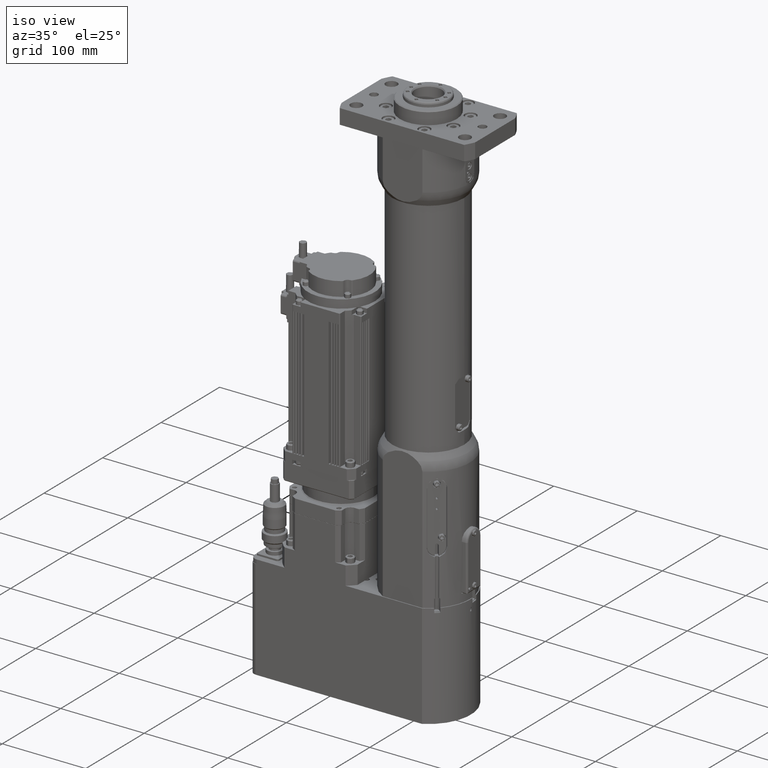
[diagram: clean part render]
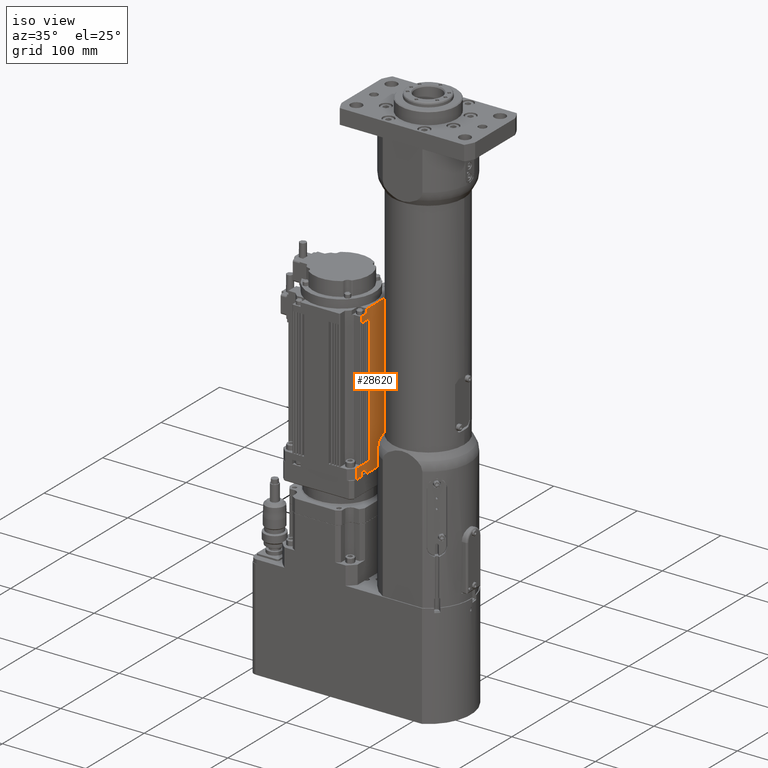
[diagram: same view with one face highlighted and labeled with its STEP entity id]
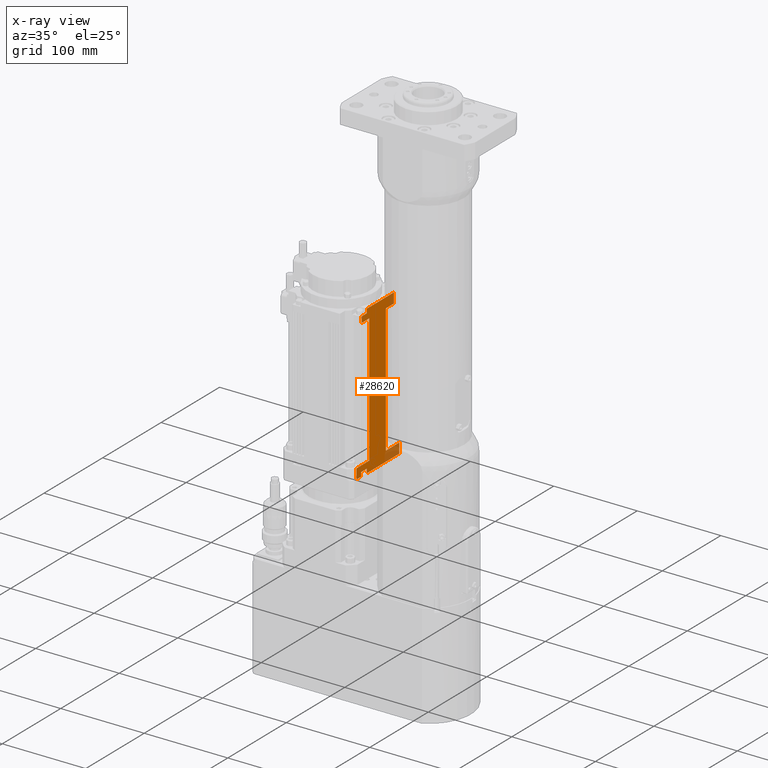
[diagram: x-ray of the same camera — body ghosted, the highlighted face saturated]
A machine part, iso view. The second image highlights one B-rep face of the part: STEP entity #28620.
The next image is the same camera in x-ray: the body ghosted, the highlighted face saturated — about 7% of this face is hidden behind the body in this view.
In plain terms, the highlighted planar face has unit normal (1, 0, -0).
Its self-contained STEP definition (entity closure, byte-faithful):
#3024=PLANE('',#31618);
#4294=LINE('',#46968,#6147);
#4299=LINE('',#46995,#6152);
#4330=LINE('',#47072,#6183);
#4332=LINE('',#47078,#6185);
#4335=LINE('',#47083,#6188);
#4425=LINE('',#47303,#6278);
#4435=LINE('',#47328,#6288);
#4441=LINE('',#47344,#6294);
#4453=LINE('',#47373,#6306);
#4462=LINE('',#47395,#6315);
#4468=LINE('',#47411,#6321);
#4475=LINE('',#47428,#6328);
#4482=LINE('',#47446,#6335);
#4560=LINE('',#47670,#6413);
#4562=LINE('',#47677,#6415);
#4564=LINE('',#47684,#6417);
#4567=LINE('',#47693,#6420);
#4570=LINE('',#47703,#6423);
#4573=LINE('',#47712,#6426);
#4575=LINE('',#47719,#6428);
#4577=LINE('',#47726,#6430);
#4602=LINE('',#47810,#6455);
#4609=LINE('',#47826,#6462);
#4858=LINE('',#48682,#6711);
#4859=LINE('',#48684,#6712);
#4867=LINE('',#48703,#6720);
#4869=LINE('',#48707,#6722);
#4877=LINE('',#48726,#6730);
#4878=LINE('',#48729,#6731);
#4879=LINE('',#48730,#6732);
#4880=LINE('',#48731,#6733);
#4881=LINE('',#48732,#6734);
#6147=VECTOR('',#37249,12.);
#6152=VECTOR('',#37276,12.);
#6183=VECTOR('',#37347,9.99999999999999);
#6185=VECTOR('',#37353,5.);
#6188=VECTOR('',#37358,5.);
#6278=VECTOR('',#37530,3.99999999999997);
#6288=VECTOR('',#37550,3.00000000000001);
#6294=VECTOR('',#37564,2.99999999999999);
#6306=VECTOR('',#37588,3.00000000000001);
#6315=VECTOR('',#37607,2.99999999999999);
#6321=VECTOR('',#37621,3.49999999999999);
#6328=VECTOR('',#37636,3.50000000000001);
#6335=VECTOR('',#37651,3.99999999999997);
#6413=VECTOR('',#37845,3.50000000000001);
#6415=VECTOR('',#37853,2.99999999999999);
#6417=VECTOR('',#37861,2.99999999999999);
#6420=VECTOR('',#37870,3.99999999999999);
#6423=VECTOR('',#37879,3.99999999999999);
#6426=VECTOR('',#37888,3.49999999999999);
#6428=VECTOR('',#37896,3.00000000000001);
#6430=VECTOR('',#37904,3.00000000000001);
#6455=VECTOR('',#37989,8.99999999999998);
#6462=VECTOR('',#38002,5.);
#6711=VECTOR('',#38907,12.0000000000001);
#6712=VECTOR('',#38910,46.);
#6720=VECTOR('',#38940,154.);
#6722=VECTOR('',#38946,154.);
#6730=VECTOR('',#38976,7.00000000000019);
#6731=VECTOR('',#38981,9.33408747342606);
#6732=VECTOR('',#38982,8.33408747342602);
#6733=VECTOR('',#38983,55.334087473426);
#6734=VECTOR('',#38984,9.33408747342607);
#9414=FACE_OUTER_BOUND('',#11484,.T.);
#11484=EDGE_LOOP('',(#25549,#25550,#25551,#25552,#25553,#25554,#25555,#25556,
#25557,#25558,#25559,#25560,#25561,#25562,#25563,#25564,#25565,#25566,#25567,
#25568,#25569,#25570,#25571,#25572,#25573,#25574,#25575,#25576,#25577,#25578,
#25579,#25580));
#14922=VERTEX_POINT('',#46960);
#14925=VERTEX_POINT('',#46966);
#14935=VERTEX_POINT('',#46992);
#14936=VERTEX_POINT('',#46994);
#14960=VERTEX_POINT('',#47066);
#14962=VERTEX_POINT('',#47070);
#14964=VERTEX_POINT('',#47077);
#14965=VERTEX_POINT('',#47081);
#15053=VERTEX_POINT('',#47301);
#15054=VERTEX_POINT('',#47302);
#15063=VERTEX_POINT('',#47326);
#15064=VERTEX_POINT('',#47327);
#15070=VERTEX_POINT('',#47343);
#15080=VERTEX_POINT('',#47371);
#15081=VERTEX_POINT('',#47372);
#15089=VERTEX_POINT('',#47394);
#15095=VERTEX_POINT('',#47410);
#15108=VERTEX_POINT('',#47445);
#15195=VERTEX_POINT('',#47667);
#15196=VERTEX_POINT('',#47669);
#15198=VERTEX_POINT('',#47676);
#15200=VERTEX_POINT('',#47683);
#15203=VERTEX_POINT('',#47692);
#15206=VERTEX_POINT('',#47700);
#15207=VERTEX_POINT('',#47702);
#15210=VERTEX_POINT('',#47711);
#15212=VERTEX_POINT('',#47718);
#15214=VERTEX_POINT('',#47725);
#15242=VERTEX_POINT('',#47807);
#15243=VERTEX_POINT('',#47809);
#15249=VERTEX_POINT('',#47825);
#15488=VERTEX_POINT('',#48680);
#18172=EDGE_CURVE('',#14922,#14925,#4294,.T.);
#18185=EDGE_CURVE('',#14935,#14936,#4299,.T.);
#18224=EDGE_CURVE('',#14960,#14962,#4330,.T.);
#18227=EDGE_CURVE('',#14964,#14960,#4332,.T.);
#18230=EDGE_CURVE('',#14962,#14965,#4335,.T.);
#18334=EDGE_CURVE('',#15053,#15054,#4425,.T.);
#18346=EDGE_CURVE('',#15063,#15064,#4435,.T.);
#18354=EDGE_CURVE('',#15070,#15063,#4441,.T.);
#18368=EDGE_CURVE('',#15080,#15081,#4453,.T.);
#18379=EDGE_CURVE('',#15081,#15089,#4462,.T.);
#18387=EDGE_CURVE('',#15080,#15095,#4468,.T.);
#18396=EDGE_CURVE('',#15064,#15053,#4475,.T.);
#18405=EDGE_CURVE('',#15108,#15089,#4482,.T.);
#18517=EDGE_CURVE('',#15195,#15196,#4560,.T.);
#18521=EDGE_CURVE('',#15196,#15198,#4562,.T.);
#18525=EDGE_CURVE('',#15198,#15200,#4564,.T.);
#18530=EDGE_CURVE('',#15200,#15203,#4567,.T.);
#18535=EDGE_CURVE('',#15206,#15207,#4570,.T.);
#18540=EDGE_CURVE('',#15207,#15210,#4573,.T.);
#18544=EDGE_CURVE('',#15210,#15212,#4575,.T.);
#18548=EDGE_CURVE('',#15212,#15214,#4577,.T.);
#18593=EDGE_CURVE('',#15243,#15242,#4602,.T.);
#18601=EDGE_CURVE('',#15249,#15243,#4609,.T.);
#19003=EDGE_CURVE('',#15488,#15195,#4858,.T.);
#19004=EDGE_CURVE('',#15249,#15488,#4859,.T.);
#19012=EDGE_CURVE('',#15203,#15108,#4867,.T.);
#19014=EDGE_CURVE('',#15054,#15206,#4869,.T.);
#19022=EDGE_CURVE('',#15214,#15242,#4877,.T.);
#19024=EDGE_CURVE('',#14936,#15070,#4878,.T.);
#19025=EDGE_CURVE('',#14935,#14964,#4879,.T.);
#19026=EDGE_CURVE('',#14965,#14922,#4880,.T.);
#19027=EDGE_CURVE('',#15095,#14925,#4881,.T.);
#25549=ORIENTED_EDGE('',*,*,#19022,.F.);
#25550=ORIENTED_EDGE('',*,*,#18548,.F.);
#25551=ORIENTED_EDGE('',*,*,#18544,.F.);
#25552=ORIENTED_EDGE('',*,*,#18540,.F.);
#25553=ORIENTED_EDGE('',*,*,#18535,.F.);
#25554=ORIENTED_EDGE('',*,*,#19014,.F.);
#25555=ORIENTED_EDGE('',*,*,#18334,.F.);
#25556=ORIENTED_EDGE('',*,*,#18396,.F.);
#25557=ORIENTED_EDGE('',*,*,#18346,.F.);
#25558=ORIENTED_EDGE('',*,*,#18354,.F.);
#25559=ORIENTED_EDGE('',*,*,#19024,.F.);
#25560=ORIENTED_EDGE('',*,*,#18185,.F.);
#25561=ORIENTED_EDGE('',*,*,#19025,.T.);
#25562=ORIENTED_EDGE('',*,*,#18227,.T.);
#25563=ORIENTED_EDGE('',*,*,#18224,.T.);
#25564=ORIENTED_EDGE('',*,*,#18230,.T.);
#25565=ORIENTED_EDGE('',*,*,#19026,.T.);
#25566=ORIENTED_EDGE('',*,*,#18172,.T.);
#25567=ORIENTED_EDGE('',*,*,#19027,.F.);
#25568=ORIENTED_EDGE('',*,*,#18387,.F.);
#25569=ORIENTED_EDGE('',*,*,#18368,.T.);
#25570=ORIENTED_EDGE('',*,*,#18379,.T.);
#25571=ORIENTED_EDGE('',*,*,#18405,.F.);
#25572=ORIENTED_EDGE('',*,*,#19012,.F.);
#25573=ORIENTED_EDGE('',*,*,#18530,.F.);
#25574=ORIENTED_EDGE('',*,*,#18525,.F.);
#25575=ORIENTED_EDGE('',*,*,#18521,.F.);
#25576=ORIENTED_EDGE('',*,*,#18517,.F.);
#25577=ORIENTED_EDGE('',*,*,#19003,.F.);
#25578=ORIENTED_EDGE('',*,*,#19004,.F.);
#25579=ORIENTED_EDGE('',*,*,#18601,.T.);
#25580=ORIENTED_EDGE('',*,*,#18593,.T.);
#28620=ADVANCED_FACE('',(#9414),#3024,.T.);
#31618=AXIS2_PLACEMENT_3D('',#48728,#38979,#38980);
#37249=DIRECTION('',(9.30439962930108E-17,-3.48167009810821E-18,1.));
#37276=DIRECTION('',(9.30439962930108E-17,-3.48167009810821E-18,1.));
#37347=DIRECTION('',(-5.30652202546146E-15,1.,3.4816700981087E-18));
#37353=DIRECTION('',(9.30439962930108E-17,-3.48167009810821E-18,1.));
#37358=DIRECTION('',(-9.30439962930108E-17,3.48167009810821E-18,-1.));
#37530=DIRECTION('',(-5.30652202546146E-15,1.,3.48167009810888E-18));
#37550=DIRECTION('',(-5.30652202546146E-15,1.,3.48167009810888E-18));
#37564=DIRECTION('',(-5.30652202546146E-15,1.,3.48167009810888E-18));
#37588=DIRECTION('',(5.30652202546146E-15,-1.,-3.48167009810888E-18));
#37607=DIRECTION('',(5.30652202546146E-15,-1.,-3.48167009810888E-18));
#37621=DIRECTION('',(-5.30652202546146E-15,1.,3.48167009810888E-18));
#37636=DIRECTION('',(-5.30652202546146E-15,1.,3.48167009810888E-18));
#37651=DIRECTION('',(-5.30652202546146E-15,1.,3.48167009810888E-18));
#37845=DIRECTION('',(5.30652202546146E-15,-1.,-3.4816700981087E-18));
#37853=DIRECTION('',(5.30652202546146E-15,-1.,-3.4816700981087E-18));
#37861=DIRECTION('',(5.30652202546146E-15,-1.,-3.4816700981087E-18));
#37870=DIRECTION('',(5.30652202546146E-15,-1.,-3.4816700981087E-18));
#37879=DIRECTION('',(5.30652202546146E-15,-1.,-3.4816700981087E-18));
#37888=DIRECTION('',(5.30652202546146E-15,-1.,-3.4816700981087E-18));
#37896=DIRECTION('',(5.30652202546146E-15,-1.,-3.4816700981087E-18));
#37904=DIRECTION('',(5.30652202546146E-15,-1.,-3.4816700981087E-18));
#37989=DIRECTION('',(5.30652202546146E-15,-1.,-3.4816700981087E-18));
#38002=DIRECTION('',(-9.30439962930108E-17,3.48167009810821E-18,-1.));
#38907=DIRECTION('',(-9.30439962930108E-17,3.48167009810821E-18,-1.));
#38910=DIRECTION('',(-6.24500451352013E-16,1.,3.48167009810826E-18));
#38940=DIRECTION('',(-9.30439962930121E-17,2.63014325205288E-16,-1.));
#38946=DIRECTION('',(9.30439962930095E-17,2.27214023330496E-16,1.));
#38976=DIRECTION('',(9.30439962930108E-17,-3.48167009810821E-18,1.));
#38979=DIRECTION('center_axis',(1.,5.30652202546146E-15,-9.30439962930108E-17));
#38980=DIRECTION('ref_axis',(-4.9737991503207E-15,1.,0.));
#38981=DIRECTION('',(-5.30652202546146E-15,1.,3.4816700981087E-18));
#38982=DIRECTION('',(-5.30652202546146E-15,1.,3.4816700981087E-18));
#38983=DIRECTION('',(-5.30652202546146E-15,1.,3.4816700981087E-18));
#38984=DIRECTION('',(-5.30652202546146E-15,1.,3.4816700981087E-18));
#46960=CARTESIAN_POINT('',(-60.5000000000002,36.8340874734263,103.5));
#46966=CARTESIAN_POINT('',(-60.5000000000002,36.8340874734263,115.5));
#46968=CARTESIAN_POINT('',(-60.5000000000002,36.8340874734263,103.5));
#46992=CARTESIAN_POINT('',(-60.4999999999998,-36.8340874734258,103.5));
#46994=CARTESIAN_POINT('',(-60.4999999999998,-36.8340874734258,115.5));
#46995=CARTESIAN_POINT('',(-60.4999999999998,-36.8340874734258,103.5));
#47066=CARTESIAN_POINT('',(-60.4999999999998,-28.4999999999998,108.5));
#47070=CARTESIAN_POINT('',(-60.4999999999999,-18.4999999999998,108.5));
#47072=CARTESIAN_POINT('',(-60.4999999999998,-30.1670437367128,108.5));
#47077=CARTESIAN_POINT('',(-60.4999999999998,-28.4999999999998,103.5));
#47078=CARTESIAN_POINT('',(-60.4999999999998,-28.4999999999998,103.5));
#47081=CARTESIAN_POINT('',(-60.4999999999999,-18.4999999999998,103.5));
#47083=CARTESIAN_POINT('',(-60.4999999999999,-18.4999999999998,103.5));
#47301=CARTESIAN_POINT('',(-60.4999999999999,-17.9999999999997,115.5));
#47302=CARTESIAN_POINT('',(-60.4999999999999,-13.9999999999998,115.5));
#47303=CARTESIAN_POINT('',(-60.4999999999998,-25.9170437367128,115.5));
#47326=CARTESIAN_POINT('',(-60.4999999999998,-24.4999999999997,115.5));
#47327=CARTESIAN_POINT('',(-60.4999999999999,-21.4999999999997,115.5));
#47328=CARTESIAN_POINT('',(-60.4999999999998,-29.4170437367128,115.5));
#47343=CARTESIAN_POINT('',(-60.4999999999998,-27.4999999999997,115.5));
#47344=CARTESIAN_POINT('',(-60.4999999999998,-30.9170437367128,115.5));
#47371=CARTESIAN_POINT('',(-60.5000000000001,24.0000000000002,115.5));
#47372=CARTESIAN_POINT('',(-60.5000000000001,21.0000000000002,115.5));
#47373=CARTESIAN_POINT('',(-60.4999999999999,-6.6670437367128,115.5));
#47394=CARTESIAN_POINT('',(-60.5000000000001,18.0000000000002,115.5));
#47395=CARTESIAN_POINT('',(-60.4999999999999,-8.1670437367128,115.5));
#47410=CARTESIAN_POINT('',(-60.5000000000001,27.5000000000002,115.5));
#47411=CARTESIAN_POINT('',(-60.5,-5.1670437367128,115.5));
#47428=CARTESIAN_POINT('',(-60.4999999999998,-27.9170437367128,115.5));
#47445=CARTESIAN_POINT('',(-60.5000000000001,14.0000000000002,115.5));
#47446=CARTESIAN_POINT('',(-60.4999999999999,-9.9170437367128,115.5));
#47667=CARTESIAN_POINT('',(-60.5000000000001,27.5000000000002,269.5));
#47669=CARTESIAN_POINT('',(-60.5000000000001,24.0000000000002,269.5));
#47670=CARTESIAN_POINT('',(-60.4999999999999,-18.4170437367128,269.5));
#47676=CARTESIAN_POINT('',(-60.5000000000001,21.0000000000002,269.5));
#47677=CARTESIAN_POINT('',(-60.4999999999999,-18.4170437367128,269.5));
#47683=CARTESIAN_POINT('',(-60.5000000000001,18.0000000000002,269.5));
#47684=CARTESIAN_POINT('',(-60.4999999999999,-18.4170437367128,269.5));
#47692=CARTESIAN_POINT('',(-60.5,14.0000000000002,269.5));
#47693=CARTESIAN_POINT('',(-60.4999999999999,-18.4170437367128,269.5));
#47700=CARTESIAN_POINT('',(-60.4999999999999,-13.9999999999997,269.5));
#47702=CARTESIAN_POINT('',(-60.4999999999999,-17.9999999999997,269.5));
#47703=CARTESIAN_POINT('',(-60.4999999999999,-18.4170437367128,269.5));
#47711=CARTESIAN_POINT('',(-60.4999999999998,-21.4999999999997,269.5));
#47712=CARTESIAN_POINT('',(-60.4999999999999,-18.4170437367128,269.5));
#47718=CARTESIAN_POINT('',(-60.4999999999998,-24.4999999999997,269.5));
#47719=CARTESIAN_POINT('',(-60.4999999999999,-18.4170437367128,269.5));
#47725=CARTESIAN_POINT('',(-60.4999999999998,-27.4999999999997,269.5));
#47726=CARTESIAN_POINT('',(-60.4999999999999,-18.4170437367128,269.5));
#47807=CARTESIAN_POINT('',(-60.4999999999998,-27.4999999999998,276.5));
#47809=CARTESIAN_POINT('',(-60.4999999999999,-18.4999999999998,276.5));
#47810=CARTESIAN_POINT('',(-60.4999999999998,-30.300260534881,276.5));
#47825=CARTESIAN_POINT('',(-60.4999999999999,-18.4999999999998,281.5));
#47826=CARTESIAN_POINT('',(-60.4999999999999,-18.4999999999998,192.5));
#48680=CARTESIAN_POINT('',(-60.4999999999998,27.5000000000002,281.5));
#48682=CARTESIAN_POINT('',(-60.5000000000001,27.5000000000002,109.5));
#48684=CARTESIAN_POINT('',(-60.4999999999998,-28.4999999999998,281.5));
#48703=CARTESIAN_POINT('',(-60.5000000000001,14.0000000000002,109.5));
#48707=CARTESIAN_POINT('',(-60.4999999999999,-13.9999999999997,186.5));
#48726=CARTESIAN_POINT('',(-60.4999999999998,-27.4999999999998,109.5));
#48728=CARTESIAN_POINT('Origin',(-60.4999999999998,-36.8340874734258,103.5));
#48729=CARTESIAN_POINT('',(-60.4999999999998,-36.8340874734258,115.5));
#48730=CARTESIAN_POINT('',(-60.4999999999998,-36.8340874734258,103.5));
#48731=CARTESIAN_POINT('',(-60.4999999999998,-36.8340874734258,103.5));
#48732=CARTESIAN_POINT('',(-60.4999999999998,-36.8340874734258,115.5));